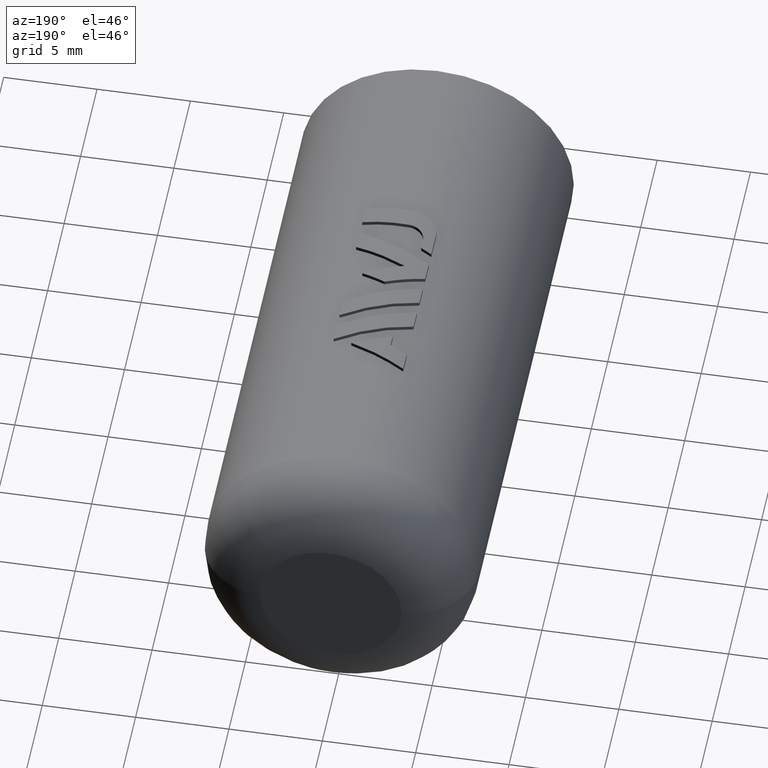
[diagram: clean part render]
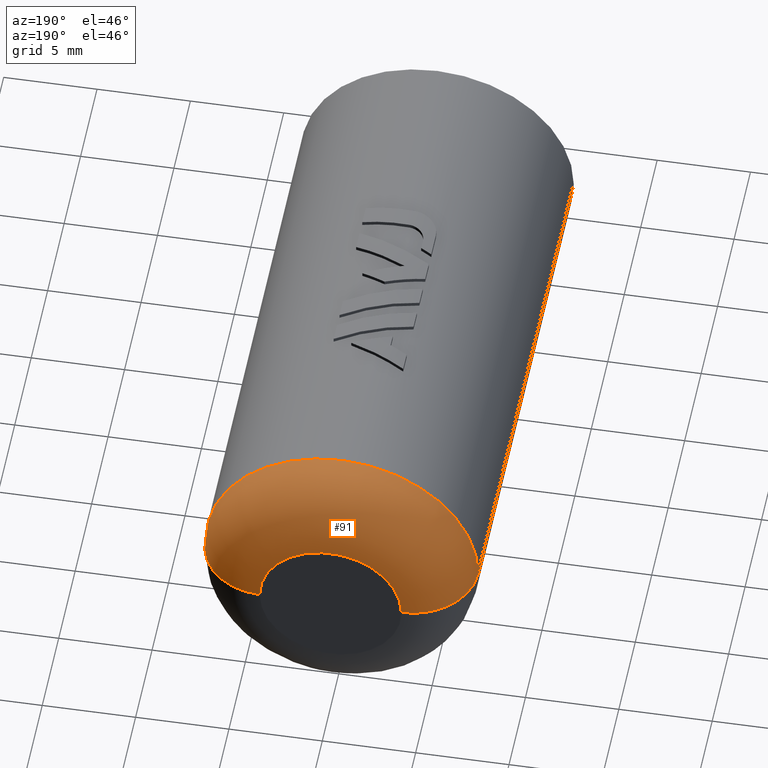
[diagram: same view with one face highlighted and labeled with its STEP entity id]
A machine part, auxiliary view. The second image highlights one B-rep face of the part: STEP entity #91.
In plain terms, the highlighted toroidal blend (fillet) surface has major radius 3.8 mm and minor (blend) radius 3.5 mm.
Its self-contained STEP definition (entity closure, byte-faithful):
#91=ADVANCED_FACE('',(#183),#184,.T.);
#183=FACE_OUTER_BOUND('',#1990,.T.);
#184=TOROIDAL_SURFACE('',#1991,3.8,3.5);
#1990=EDGE_LOOP('',(#2192,#2193,#2194,#2195));
#1991=AXIS2_PLACEMENT_3D('',#2196,#2197,#2198);
#2192=ORIENTED_EDGE('',*,*,#2842,.F.);
#2193=ORIENTED_EDGE('',*,*,#2843,.T.);
#2194=ORIENTED_EDGE('',*,*,#2844,.F.);
#2195=ORIENTED_EDGE('',*,*,#2845,.F.);
#2196=CARTESIAN_POINT('',(0.0,29.0,0.0));
#2197=DIRECTION('',(0.0,-1.0,0.0));
#2198=DIRECTION('',(1.0,0.0,-6.12323399573677E-17));
#2842=EDGE_CURVE('',#3068,#3069,#3070,.T.);
#2843=EDGE_CURVE('',#3068,#3071,#3072,.T.);
#2844=EDGE_CURVE('',#3073,#3071,#3074,.T.);
#2845=EDGE_CURVE('',#3069,#3073,#3075,.T.);
#3068=VERTEX_POINT('',#4256);
#3069=VERTEX_POINT('',#4257);
#3070=CIRCLE('',#4258,3.5);
#3071=VERTEX_POINT('',#4259);
#3072=CIRCLE('',#4260,3.8);
#3073=VERTEX_POINT('',#4261);
#3074=CIRCLE('',#4262,3.5);
#3075=CIRCLE('',#4263,7.3);
#4256=CARTESIAN_POINT('',(3.8,32.5,-2.32682891837997E-16));
#4257=CARTESIAN_POINT('',(7.3,29.0,-4.46996081688784E-16));
#4258=AXIS2_PLACEMENT_3D('',#4708,#4709,#4710);
#4259=CARTESIAN_POINT('',(-3.8,32.5,6.98048675513991E-16));
#4260=AXIS2_PLACEMENT_3D('',#4711,#4712,#4713);
#4261=CARTESIAN_POINT('',(-7.3,29.0,-4.46996081688783E-16));
#4262=AXIS2_PLACEMENT_3D('',#4714,#4715,#4716);
#4263=AXIS2_PLACEMENT_3D('',#4717,#4718,#4719);
#4708=CARTESIAN_POINT('',(3.8,29.0,-6.98048675513991E-16));
#4709=DIRECTION('',(-1.83697019872103E-16,-0.0,-1.0));
#4710=DIRECTION('',(1.0,0.0,-1.83697019872103E-16));
#4711=CARTESIAN_POINT('',(0.0,32.5,0.0));
#4712=DIRECTION('',(0.0,-1.0,0.0));
#4713=DIRECTION('',(1.0,0.0,-6.12323399573677E-17));
#4714=CARTESIAN_POINT('',(-3.8,29.0,6.98048675513991E-16));
#4715=DIRECTION('',(-1.83697019872103E-16,0.0,-1.0));
#4716=DIRECTION('',(-1.0,0.0,1.83697019872103E-16));
#4717=CARTESIAN_POINT('',(0.0,29.0,0.0));
#4718=DIRECTION('',(0.0,-1.0,0.0));
#4719=DIRECTION('',(1.0,0.0,-6.12323399573677E-17));